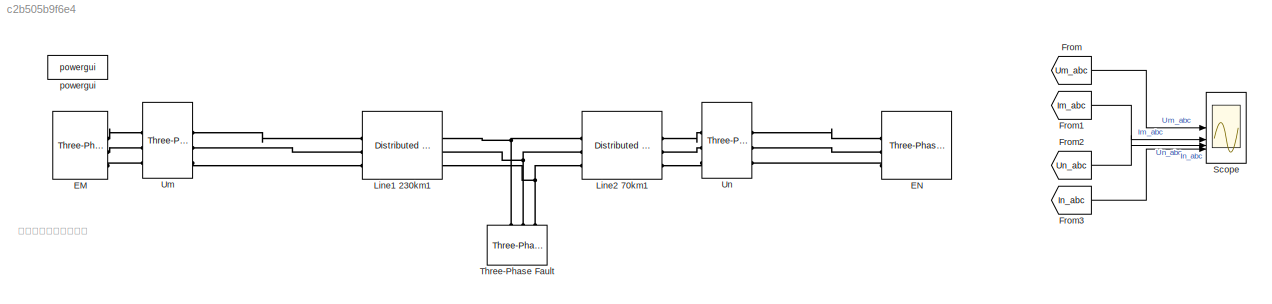
MODEL slx_c2b505b9f6e4
KIND model
CONFIG AbsTol = auto
CONFIG EnableMultiTasking = on
CONFIG FixedStep = auto
CONFIG MaxStep = 1e-4
CONFIG MinStep = auto
CONFIG RelTol = 1e-3
CONFIG SampleTimeConstraint = Unconstrained
CONFIG SolverName = ode23t
CONFIG StartTime = 0.0
CONFIG StopTime = 1
BLOCK [Reference] EM  REF=spsThreePhaseSourceLib/Three-Phase Source
  LibrarySourceBlock = sps_lib/Sources/Three-Phase Source
  SourceBlock = spsThreePhaseSourceLib/Three-Phase Source
  SourceType = Three-Phase Source
BLOCK [Reference] EN  REF=spsThreePhaseSourceLib/Three-Phase Source
  LibrarySourceBlock = sps_lib/Sources/Three-Phase Source
  SourceBlock = spsThreePhaseSourceLib/Three-Phase Source
  SourceType = Three-Phase Source
BLOCK [From] From
  GotoTag = Um_abc
  TagVisibility = global
BLOCK [From] From1
  GotoTag = Im_abc
  TagVisibility = global
BLOCK [From] From2
  GotoTag = Un_abc
  TagVisibility = global
BLOCK [From] From3
  GotoTag = In_abc
  TagVisibility = global
BLOCK [Reference] Line1 230km1  REF=spsDistributedParametersLineLib/Distributed Parameters Line
  LibrarySourceBlock = sps_lib/Power Grid Elements/Distributed Parameters Line
  SourceBlock = spsDistributedParametersLineLib/Distributed Parameters Line
  SourceType = Distributed Parameters Line
BLOCK [Reference] Line2 70km1  REF=spsDistributedParametersLineLib/Distributed Parameters Line
  LibrarySourceBlock = sps_lib/Power Grid Elements/Distributed Parameters Line
  SourceBlock = spsDistributedParametersLineLib/Distributed Parameters Line
  SourceType = Distributed Parameters Line
BLOCK [Scope] Scope
  Floating = off
  NumInputPorts = 4
  ScopeSpecificationString = Simulink.scopes.TimeScopeBlockCfg('CurrentConfiguration', extmgr.ConfigurationSet(extmgr.Configuration('Core','General UI',true,'FigureColor',[1 1 1]),extmgr.Configuration('Core','Source UI',true),extmgr.Configuration('Sources','WiredSimulink',true),extmgr.Configuration('Visuals','Time Domain',true,'SerializedDisplays',{struct('MinYLimReal','-514962.62684','MaxYLimReal','516221.79657','YLabelReal'...<+5277ch>
BLOCK [Reference] Three-Phase Fault  REF=spsThreePhaseFaultLib/Three-Phase Fault
  LibrarySourceBlock = sps_lib/Power Grid Elements/Three-Phase Fault
  NameLocation = left
  SourceBlock = spsThreePhaseFaultLib/Three-Phase Fault
  SourceType = Three-Phase Fault
BLOCK [Reference] Um  REF=spsThreePhaseVIMeasurementLib/Three-Phase
V-I Measurement
  LibrarySourceBlock = sps_lib/Sensors and Measurements/Three-Phase\nV-I Measurement
  SourceBlock = spsThreePhaseVIMeasurementLib/Three-Phase\nV-I Measurement
  SourceType = Three-Phase VI Measurement
BLOCK [Reference] Un  REF=spsThreePhaseVIMeasurementLib/Three-Phase
V-I Measurement
  LibrarySourceBlock = sps_lib/Sensors and Measurements/Three-Phase\nV-I Measurement
  SourceBlock = spsThreePhaseVIMeasurementLib/Three-Phase\nV-I Measurement
  SourceType = Three-Phase VI Measurement
BLOCK [Reference] powergui  REF=sps_lib/powergui
  SourceBlock = sps_lib/powergui
  SourceType = PSB option menu block
ANNOTATION (root): 电力系统故障仿真研究
LINE From1:1 -> Scope:2
LINE From2:1 -> Scope:3
LINE From3:1 -> Scope:4
LINE From:1 -> Scope:1
PLINE EM:RConn1 -- Um:LConn1
PLINE EM:RConn2 -- Um:LConn2
PLINE EM:RConn3 -- Um:LConn3
PLINE EN:RConn1 -- Un:LConn1
PLINE EN:RConn2 -- Un:LConn2
PLINE EN:RConn3 -- Un:LConn3
PLINE Line1 230km1:LConn1 -- Um:RConn1
PLINE Line1 230km1:LConn2 -- Um:RConn2
PLINE Line1 230km1:LConn3 -- Um:RConn3
PNET net1: Line1 230km1:RConn1 -- Line2 70km1:LConn1 -- Three-Phase Fault:LConn1
PNET net2: Line1 230km1:RConn2 -- Line2 70km1:LConn2 -- Three-Phase Fault:LConn2
PNET net3: Line1 230km1:RConn3 -- Line2 70km1:LConn3 -- Three-Phase Fault:LConn3
PLINE Line2 70km1:RConn1 -- Un:RConn1
PLINE Line2 70km1:RConn2 -- Un:RConn2
PLINE Line2 70km1:RConn3 -- Un:RConn3
note: PNET lines group multi-terminal physical nets as a canonical sorted terminal list (undirected conserving connections); 2-terminal nets keep the pairwise PLINE form
